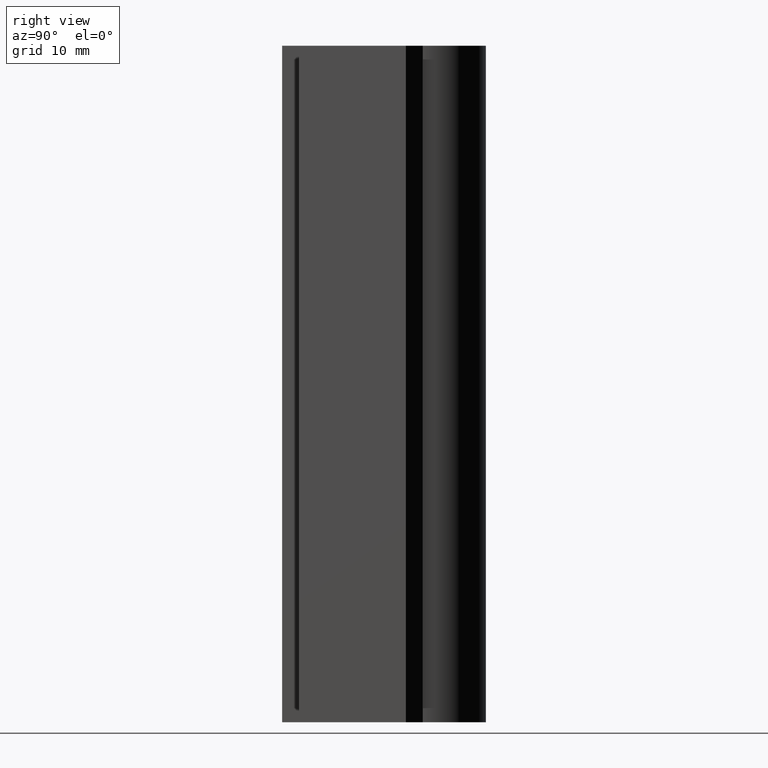
[diagram: clean part render]
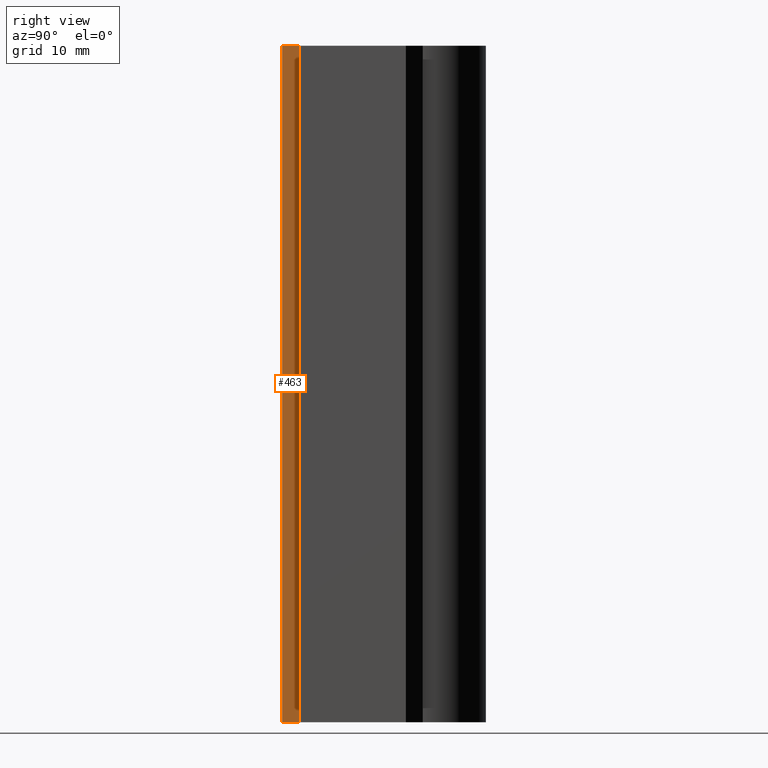
[diagram: same view with one face highlighted and labeled with its STEP entity id]
A machine part, right view. The second image highlights one B-rep face of the part: STEP entity #463.
In plain terms, the highlighted planar face has unit normal (1, 0, 0).
Its self-contained STEP definition (entity closure, byte-faithful):
#51=FACE_OUTER_BOUND('',#76,.T.);
#76=EDGE_LOOP('',(#373,#374,#375,#376));
#93=LINE('',#676,#148);
#132=LINE('',#765,#187);
#134=LINE('',#768,#189);
#135=LINE('',#769,#190);
#148=VECTOR('',#545,10.);
#187=VECTOR('',#628,10.);
#189=VECTOR('',#632,10.);
#190=VECTOR('',#633,10.);
#200=VERTEX_POINT('',#669);
#203=VERTEX_POINT('',#674);
#230=VERTEX_POINT('',#762);
#231=VERTEX_POINT('',#764);
#245=EDGE_CURVE('',#203,#200,#93,.T.);
#290=EDGE_CURVE('',#231,#230,#132,.T.);
#292=EDGE_CURVE('',#230,#200,#134,.T.);
#293=EDGE_CURVE('',#203,#231,#135,.T.);
#373=ORIENTED_EDGE('',*,*,#292,.T.);
#374=ORIENTED_EDGE('',*,*,#245,.F.);
#375=ORIENTED_EDGE('',*,*,#293,.T.);
#376=ORIENTED_EDGE('',*,*,#290,.T.);
#439=PLANE('',#518);
#463=ADVANCED_FACE('',(#51),#439,.T.);
#518=AXIS2_PLACEMENT_3D('',#767,#630,#631);
#545=DIRECTION('',(0.,0.,1.));
#628=DIRECTION('',(0.,0.,1.));
#630=DIRECTION('center_axis',(1.,8.88178419700125E-16,0.));
#631=DIRECTION('ref_axis',(0.,0.,-1.));
#632=DIRECTION('',(8.88178419700125E-16,-1.,0.));
#633=DIRECTION('',(-8.88178419700125E-16,1.,0.));
#669=CARTESIAN_POINT('',(-9.87568676000476,0.502511712748736,100.));
#674=CARTESIAN_POINT('',(-9.87568676000476,0.502511712748736,0.));
#676=CARTESIAN_POINT('',(-9.87568676000476,0.502511712748736,0.));
#762=CARTESIAN_POINT('',(-9.87568676000476,3.00251171274874,100.));
#764=CARTESIAN_POINT('',(-9.87568676000476,3.00251171274874,0.));
#765=CARTESIAN_POINT('',(-9.87568676000476,3.00251171274874,0.));
#767=CARTESIAN_POINT('Origin',(-9.87568676000476,3.00251171274874,0.));
#768=CARTESIAN_POINT('',(-9.87568676000476,0.502511712748736,100.));
#769=CARTESIAN_POINT('',(-9.87568676000476,0.502511712748736,0.));